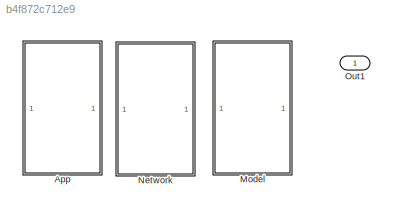
MODEL slx_b4f872c712e9
KIND model
CONFIG AbsTol = auto
CONFIG EnableMultiTasking = off
CONFIG FixedStep = auto
CONFIG MaxStep = auto
CONFIG MinStep = auto
CONFIG RelTol = 1e-3
CONFIG SampleTimeConstraint = Unconstrained
CONFIG Solver = VariableStepAuto
CONFIG SolverName = VariableStepAuto
CONFIG StartTime = 0.0
CONFIG StopTime = 20
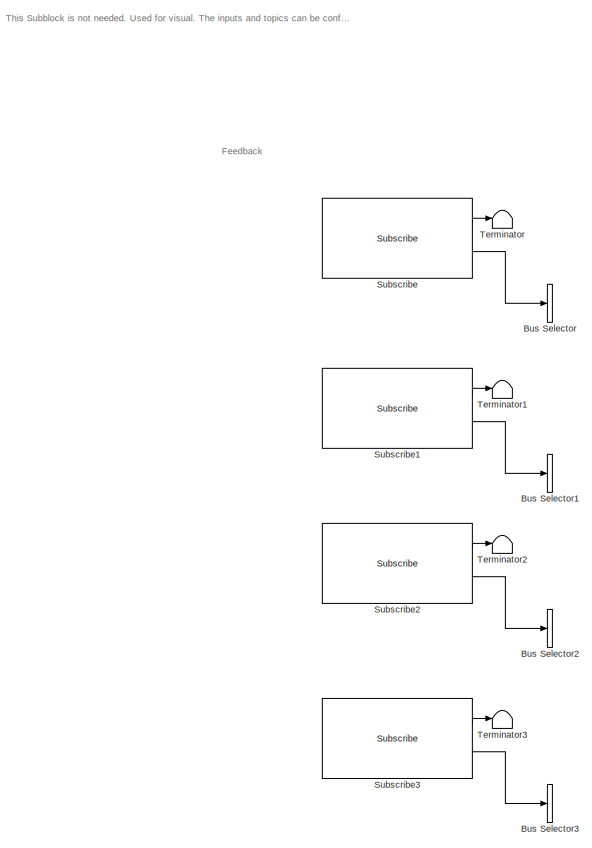
[diagram: App - part 1/2, left side, full height]
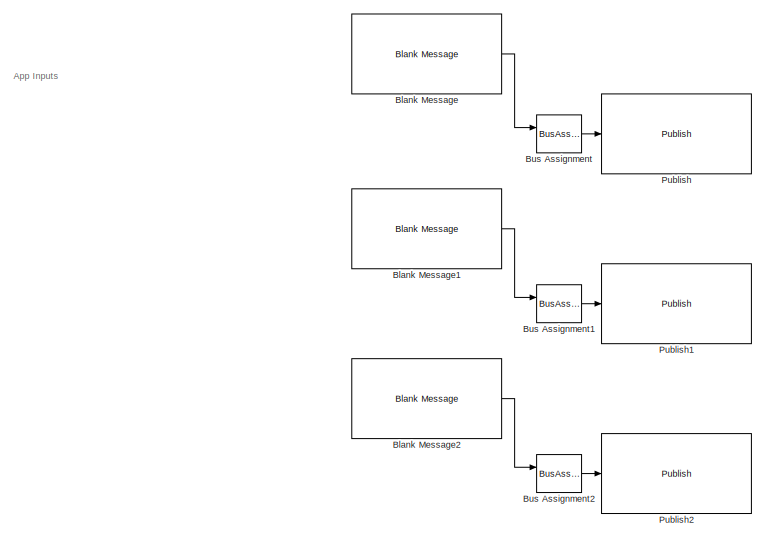
[diagram: App - part 2/2, middle right region]
BLOCK [SubSystem] App
  Commented = on
  Ports = []
  RequestExecContextInheritance = off
BLOCK [Reference] App/Blank Message  REF=robotlib/Blank Message
  Ports = [0, 1]
  SourceBlock = robotlib/Blank Message
  SourceProductBaseCode = RR
  SourceType = ROS Blank Message
BLOCK [Reference] App/Blank Message1  REF=robotlib/Blank Message
  Ports = [0, 1]
  SourceBlock = robotlib/Blank Message
  SourceProductBaseCode = RR
  SourceType = ROS Blank Message
BLOCK [Reference] App/Blank Message2  REF=robotlib/Blank Message
  Ports = [0, 1]
  SourceBlock = robotlib/Blank Message
  SourceProductBaseCode = RR
  SourceType = ROS Blank Message
BLOCK [BusAssignment] App/Bus Assignment
  AssignedSignals = Linear.X
  Ports = [2, 1]
BLOCK [BusAssignment] App/Bus Assignment1
  AssignedSignals = Linear.X
  Ports = [2, 1]
BLOCK [BusAssignment] App/Bus Assignment2
  AssignedSignals = Linear.X
  Ports = [2, 1]
BLOCK [BusSelector] App/Bus Selector
  Commented = on
  OutputSignals = Linear.X
  Ports = [1, 1]
BLOCK [BusSelector] App/Bus Selector1
  Commented = on
  OutputSignals = Linear.X
  Ports = [1, 1]
BLOCK [BusSelector] App/Bus Selector2
  Commented = on
  OutputSignals = Linear.X
  Ports = [1, 1]
BLOCK [BusSelector] App/Bus Selector3
  Commented = on
  OutputSignals = Linear.X
  Ports = [1, 1]
BLOCK [Reference] App/Publish  REF=robotlib/Publish
  Ports = [1]
  SourceBlock = robotlib/Publish
  SourceProductBaseCode = RR
  SourceType = ROS Publish
BLOCK [Reference] App/Publish1  REF=robotlib/Publish
  Ports = [1]
  SourceBlock = robotlib/Publish
  SourceProductBaseCode = RR
  SourceType = ROS Publish
BLOCK [Reference] App/Publish2  REF=robotlib/Publish
  Ports = [1]
  SourceBlock = robotlib/Publish
  SourceProductBaseCode = RR
  SourceType = ROS Publish
BLOCK [Reference] App/Subscribe  REF=robotlib/Subscribe
  Commented = on
  Ports = [0, 2]
  SourceBlock = robotlib/Subscribe
  SourceProductBaseCode = RR
  SourceType = ROS Subscribe
BLOCK [Reference] App/Subscribe1  REF=robotlib/Subscribe
  Commented = on
  Ports = [0, 2]
  SourceBlock = robotlib/Subscribe
  SourceProductBaseCode = RR
  SourceType = ROS Subscribe
BLOCK [Reference] App/Subscribe2  REF=robotlib/Subscribe
  Commented = on
  Ports = [0, 2]
  SourceBlock = robotlib/Subscribe
  SourceProductBaseCode = RR
  SourceType = ROS Subscribe
BLOCK [Reference] App/Subscribe3  REF=robotlib/Subscribe
  Commented = on
  Ports = [0, 2]
  SourceBlock = robotlib/Subscribe
  SourceProductBaseCode = RR
  SourceType = ROS Subscribe
BLOCK [Terminator] App/Terminator
  Commented = on
BLOCK [Terminator] App/Terminator1
  Commented = on
BLOCK [Terminator] App/Terminator2
  Commented = on
BLOCK [Terminator] App/Terminator3
  Commented = on
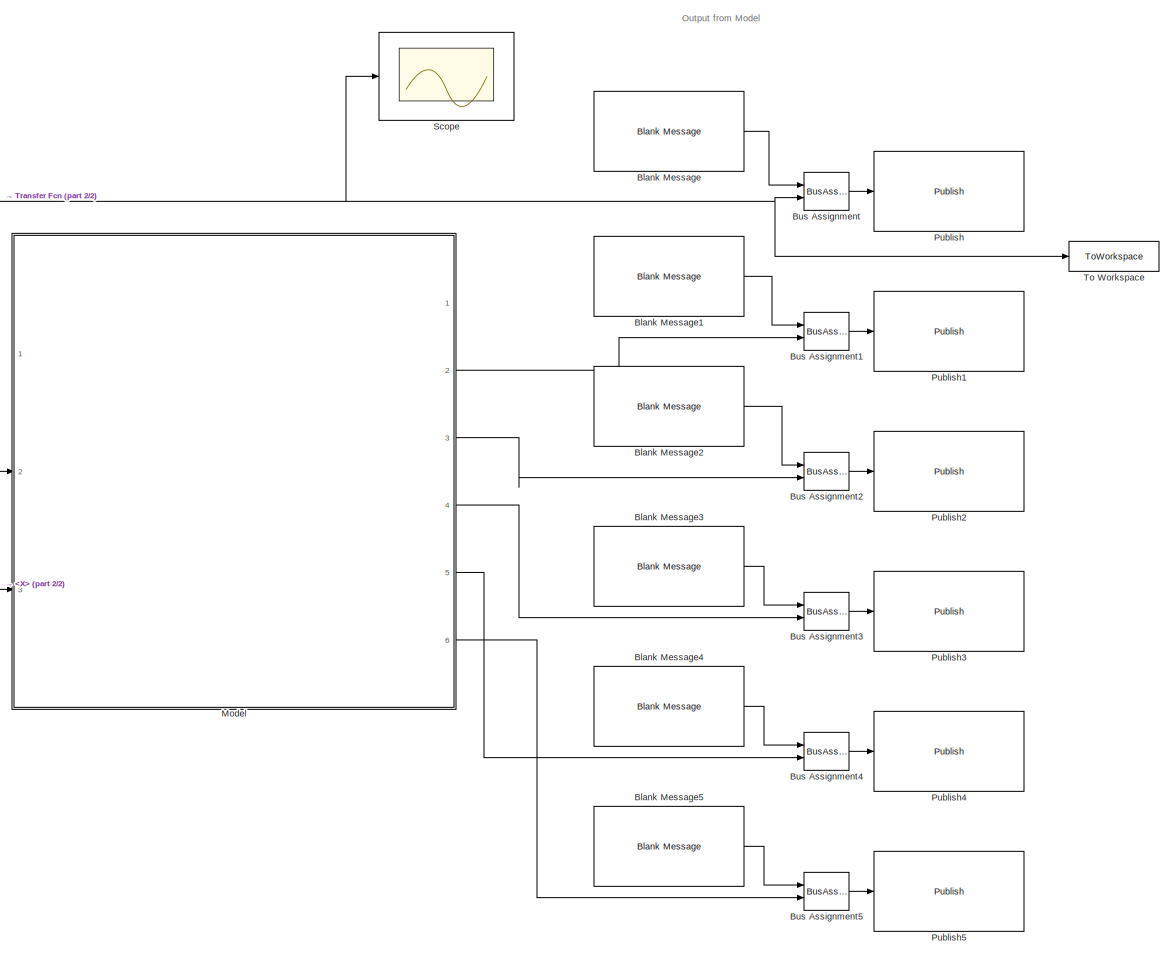
[diagram: Model - part 1/2, right side, full height]
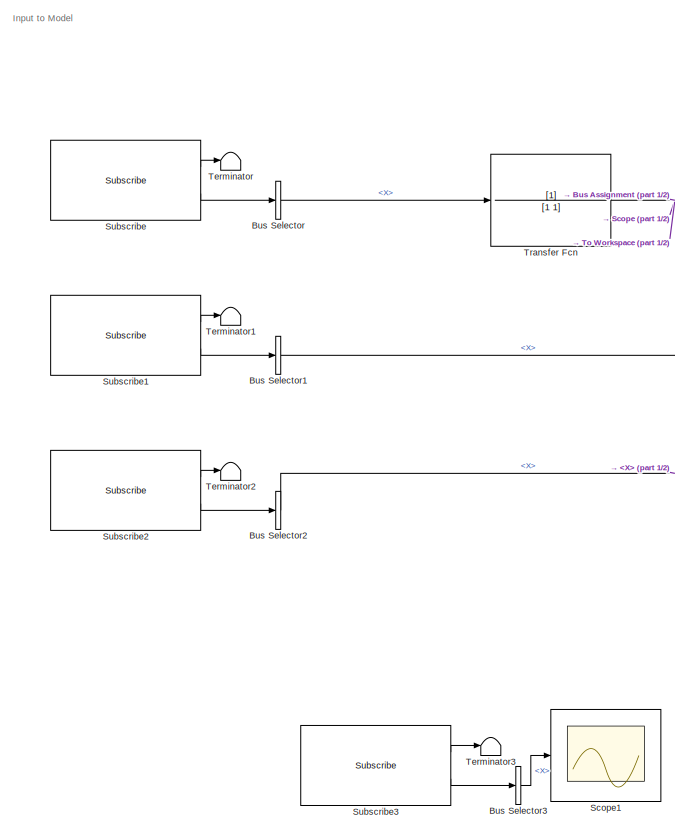
[diagram: Model - part 2/2, left side, full height]
BLOCK [SubSystem] Model
  Ports = []
  RequestExecContextInheritance = off
BLOCK [Reference] Model/Blank Message  REF=robotlib/Blank Message
  Ports = [0, 1]
  SourceBlock = robotlib/Blank Message
  SourceProductBaseCode = RR
  SourceType = ROS Blank Message
BLOCK [Reference] Model/Blank Message1  REF=robotlib/Blank Message
  Commented = on
  Ports = [0, 1]
  SourceBlock = robotlib/Blank Message
  SourceProductBaseCode = RR
  SourceType = ROS Blank Message
BLOCK [Reference] Model/Blank Message2  REF=robotlib/Blank Message
  Commented = on
  Ports = [0, 1]
  SourceBlock = robotlib/Blank Message
  SourceProductBaseCode = RR
  SourceType = ROS Blank Message
BLOCK [Reference] Model/Blank Message3  REF=robotlib/Blank Message
  Commented = on
  Ports = [0, 1]
  SourceBlock = robotlib/Blank Message
  SourceProductBaseCode = RR
  SourceType = ROS Blank Message
BLOCK [Reference] Model/Blank Message4  REF=robotlib/Blank Message
  Commented = on
  Ports = [0, 1]
  SourceBlock = robotlib/Blank Message
  SourceProductBaseCode = RR
  SourceType = ROS Blank Message
BLOCK [Reference] Model/Blank Message5  REF=robotlib/Blank Message
  Commented = on
  Ports = [0, 1]
  SourceBlock = robotlib/Blank Message
  SourceProductBaseCode = RR
  SourceType = ROS Blank Message
BLOCK [BusAssignment] Model/Bus Assignment
  AssignedSignals = Linear.X
  Ports = [2, 1]
BLOCK [BusAssignment] Model/Bus Assignment1
  AssignedSignals = Linear.X
  Commented = on
  Ports = [2, 1]
BLOCK [BusAssignment] Model/Bus Assignment2
  AssignedSignals = Linear.X
  Commented = on
  Ports = [2, 1]
BLOCK [BusAssignment] Model/Bus Assignment3
  AssignedSignals = Linear.X
  Commented = on
  Ports = [2, 1]
BLOCK [BusAssignment] Model/Bus Assignment4
  AssignedSignals = Linear.X
  Commented = on
  Ports = [2, 1]
BLOCK [BusAssignment] Model/Bus Assignment5
  AssignedSignals = Linear.X
  Commented = on
  Ports = [2, 1]
BLOCK [BusSelector] Model/Bus Selector
  OutputSignals = Linear.X
  Ports = [1, 1]
BLOCK [BusSelector] Model/Bus Selector1
  OutputSignals = Linear.X
  Ports = [1, 1]
BLOCK [BusSelector] Model/Bus Selector2
  OutputSignals = Linear.X
  Ports = [1, 1]
BLOCK [BusSelector] Model/Bus Selector3
  Commented = on
  OutputSignals = Linear.X
  Ports = [1, 1]
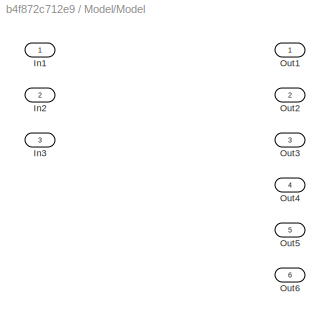
BLOCK [SubSystem] Model/Model
  Commented = on
  Ports = [3, 6]
  RequestExecContextInheritance = off
BLOCK [Inport] Model/Model/In1
BLOCK [Inport] Model/Model/In2
  Port = 2
BLOCK [Inport] Model/Model/In3
  Port = 3
BLOCK [Outport] Model/Model/Out1
BLOCK [Outport] Model/Model/Out2
  Port = 2
BLOCK [Outport] Model/Model/Out3
  Port = 3
BLOCK [Outport] Model/Model/Out4
  Port = 4
BLOCK [Outport] Model/Model/Out5
  Port = 5
BLOCK [Outport] Model/Model/Out6
  Port = 6
BLOCK [Reference] Model/Publish  REF=robotlib/Publish
  Ports = [1]
  SourceBlock = robotlib/Publish
  SourceProductBaseCode = RR
  SourceType = ROS Publish
BLOCK [Reference] Model/Publish1  REF=robotlib/Publish
  Commented = on
  Ports = [1]
  SourceBlock = robotlib/Publish
  SourceProductBaseCode = RR
  SourceType = ROS Publish
BLOCK [Reference] Model/Publish2  REF=robotlib/Publish
  Commented = on
  Ports = [1]
  SourceBlock = robotlib/Publish
  SourceProductBaseCode = RR
  SourceType = ROS Publish
BLOCK [Reference] Model/Publish3  REF=robotlib/Publish
  Commented = on
  Ports = [1]
  SourceBlock = robotlib/Publish
  SourceProductBaseCode = RR
  SourceType = ROS Publish
BLOCK [Reference] Model/Publish4  REF=robotlib/Publish
  Commented = on
  Ports = [1]
  SourceBlock = robotlib/Publish
  SourceProductBaseCode = RR
  SourceType = ROS Publish
BLOCK [Reference] Model/Publish5  REF=robotlib/Publish
  Commented = on
  Ports = [1]
  SourceBlock = robotlib/Publish
  SourceProductBaseCode = RR
  SourceType = ROS Publish
BLOCK [Scope] Model/Scope
  Floating = off
  NumInputPorts = 1
  Ports = [1]
  ScopeSpecificationString = Simulink.scopes.TimeScopeBlockCfg('CurrentConfiguration', extmgr.ConfigurationSet(extmgr.Configuration('Core','General UI',true),extmgr.Configuration('Core','Source UI',true),extmgr.Configuration('Sources','WiredSimulink',true,'DataLoggingVariableName','ScopeData1'),extmgr.Configuration('Visuals','Time Domain',true,'SerializedDisplays',{struct('MinYLimReal','-1.24938','MaxYLimReal','11.24438','YLa...<+1406ch>
BLOCK [Scope] Model/Scope1
  Commented = on
  Floating = off
  NumInputPorts = 1
  Ports = [1]
  ScopeSpecificationString = Simulink.scopes.TimeScopeBlockCfg('CurrentConfiguration', extmgr.ConfigurationSet(extmgr.Configuration('Core','General UI',true),extmgr.Configuration('Core','Source UI',true),extmgr.Configuration('Sources','WiredSimulink',true,'DataLoggingVariableName','ScopeData1'),extmgr.Configuration('Visuals','Time Domain',true,'SerializedDisplays',{struct('MinYLimReal','-1.4991','MaxYLimReal','13.49192','YLab...<+1395ch>
BLOCK [Reference] Model/Subscribe  REF=robotlib/Subscribe
  Ports = [0, 2]
  SourceBlock = robotlib/Subscribe
  SourceProductBaseCode = RR
  SourceType = ROS Subscribe
BLOCK [Reference] Model/Subscribe1  REF=robotlib/Subscribe
  Ports = [0, 2]
  SourceBlock = robotlib/Subscribe
  SourceProductBaseCode = RR
  SourceType = ROS Subscribe
BLOCK [Reference] Model/Subscribe2  REF=robotlib/Subscribe
  Ports = [0, 2]
  SourceBlock = robotlib/Subscribe
  SourceProductBaseCode = RR
  SourceType = ROS Subscribe
BLOCK [Reference] Model/Subscribe3  REF=robotlib/Subscribe
  Commented = on
  Ports = [0, 2]
  SourceBlock = robotlib/Subscribe
  SourceProductBaseCode = RR
  SourceType = ROS Subscribe
BLOCK [Terminator] Model/Terminator
BLOCK [Terminator] Model/Terminator1
BLOCK [Terminator] Model/Terminator2
BLOCK [Terminator] Model/Terminator3
  Commented = on
BLOCK [ToWorkspace] Model/To Workspace
  FixptAsFi = on
  MaxDataPoints = inf
  Ports = [1]
  SampleTime = -1
  SaveFormat = Timeseries
  VariableName = PedalData
BLOCK [TransferFcn] Model/Transfer Fcn
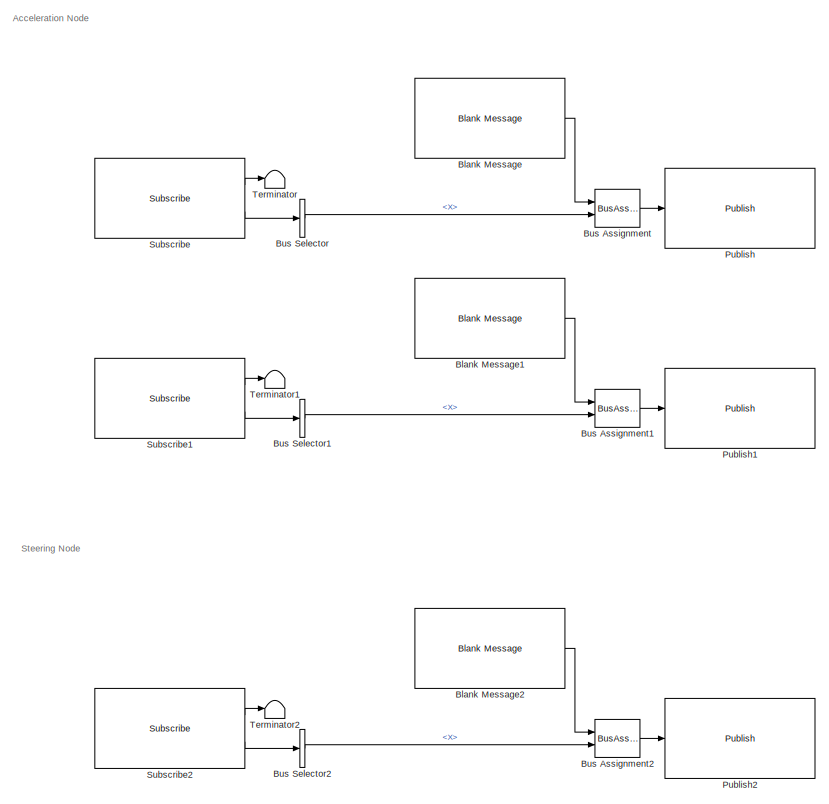
[diagram: Network - part 1/2, full width, top band]
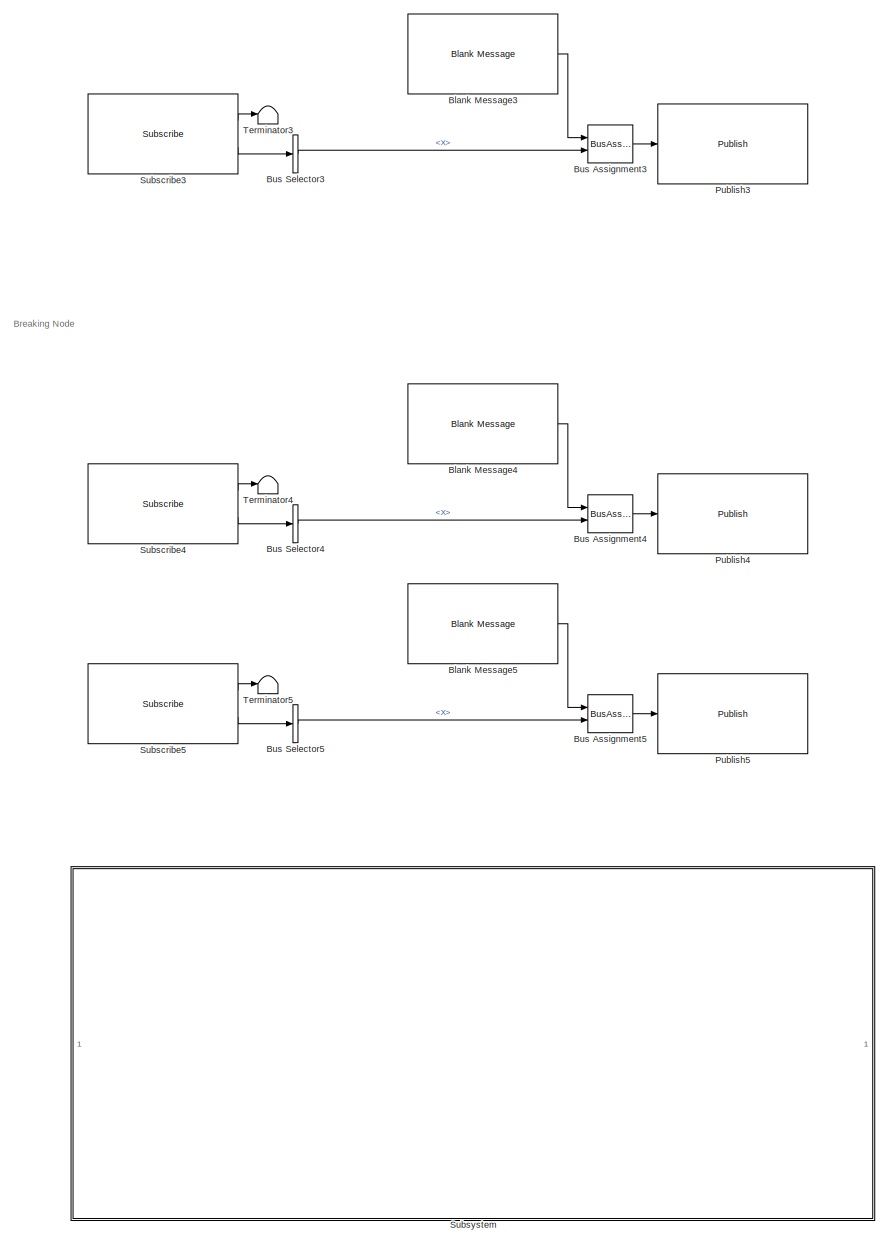
[diagram: Network - part 2/2, full width, bottom band]
BLOCK [SubSystem] Network
  Ports = []
  RequestExecContextInheritance = off
BLOCK [Reference] Network/Blank Message  REF=robotlib/Blank Message
  Ports = [0, 1]
  SourceBlock = robotlib/Blank Message
  SourceProductBaseCode = RR
  SourceType = ROS Blank Message
BLOCK [Reference] Network/Blank Message1  REF=robotlib/Blank Message
  Ports = [0, 1]
  SourceBlock = robotlib/Blank Message
  SourceProductBaseCode = RR
  SourceType = ROS Blank Message
BLOCK [Reference] Network/Blank Message2  REF=robotlib/Blank Message
  Ports = [0, 1]
  SourceBlock = robotlib/Blank Message
  SourceProductBaseCode = RR
  SourceType = ROS Blank Message
BLOCK [Reference] Network/Blank Message3  REF=robotlib/Blank Message
  Ports = [0, 1]
  SourceBlock = robotlib/Blank Message
  SourceProductBaseCode = RR
  SourceType = ROS Blank Message
BLOCK [Reference] Network/Blank Message4  REF=robotlib/Blank Message
  Ports = [0, 1]
  SourceBlock = robotlib/Blank Message
  SourceProductBaseCode = RR
  SourceType = ROS Blank Message
BLOCK [Reference] Network/Blank Message5  REF=robotlib/Blank Message
  Ports = [0, 1]
  SourceBlock = robotlib/Blank Message
  SourceProductBaseCode = RR
  SourceType = ROS Blank Message
BLOCK [BusAssignment] Network/Bus Assignment
  AssignedSignals = Linear.X
  Ports = [2, 1]
BLOCK [BusAssignment] Network/Bus Assignment1
  AssignedSignals = Linear.X
  Ports = [2, 1]
BLOCK [BusAssignment] Network/Bus Assignment2
  AssignedSignals = Linear.X
  Ports = [2, 1]
BLOCK [BusAssignment] Network/Bus Assignment3
  AssignedSignals = Linear.X
  Ports = [2, 1]
BLOCK [BusAssignment] Network/Bus Assignment4
  AssignedSignals = Linear.X
  Ports = [2, 1]
BLOCK [BusAssignment] Network/Bus Assignment5
  AssignedSignals = Linear.X
  Ports = [2, 1]
BLOCK [BusSelector] Network/Bus Selector
  OutputSignals = Linear.X
  Ports = [1, 1]
BLOCK [BusSelector] Network/Bus Selector1
  OutputSignals = Linear.X
  Ports = [1, 1]
BLOCK [BusSelector] Network/Bus Selector2
  OutputSignals = Linear.X
  Ports = [1, 1]
BLOCK [BusSelector] Network/Bus Selector3
  OutputSignals = Linear.X
  Ports = [1, 1]
BLOCK [BusSelector] Network/Bus Selector4
  OutputSignals = Linear.X
  Ports = [1, 1]
BLOCK [BusSelector] Network/Bus Selector5
  OutputSignals = Linear.X
  Ports = [1, 1]
BLOCK [Reference] Network/Publish  REF=robotlib/Publish
  Ports = [1]
  SourceBlock = robotlib/Publish
  SourceProductBaseCode = RR
  SourceType = ROS Publish
BLOCK [Reference] Network/Publish1  REF=robotlib/Publish
  Ports = [1]
  SourceBlock = robotlib/Publish
  SourceProductBaseCode = RR
  SourceType = ROS Publish
BLOCK [Reference] Network/Publish2  REF=robotlib/Publish
  Ports = [1]
  SourceBlock = robotlib/Publish
  SourceProductBaseCode = RR
  SourceType = ROS Publish
BLOCK [Reference] Network/Publish3  REF=robotlib/Publish
  Ports = [1]
  SourceBlock = robotlib/Publish
  SourceProductBaseCode = RR
  SourceType = ROS Publish
BLOCK [Reference] Network/Publish4  REF=robotlib/Publish
  Ports = [1]
  SourceBlock = robotlib/Publish
  SourceProductBaseCode = RR
  SourceType = ROS Publish
BLOCK [Reference] Network/Publish5  REF=robotlib/Publish
  Ports = [1]
  SourceBlock = robotlib/Publish
  SourceProductBaseCode = RR
  SourceType = ROS Publish
BLOCK [Reference] Network/Subscribe  REF=robotlib/Subscribe
  Ports = [0, 2]
  SourceBlock = robotlib/Subscribe
  SourceProductBaseCode = RR
  SourceType = ROS Subscribe
BLOCK [Reference] Network/Subscribe1  REF=robotlib/Subscribe
  Ports = [0, 2]
  SourceBlock = robotlib/Subscribe
  SourceProductBaseCode = RR
  SourceType = ROS Subscribe
BLOCK [Reference] Network/Subscribe2  REF=robotlib/Subscribe
  Ports = [0, 2]
  SourceBlock = robotlib/Subscribe
  SourceProductBaseCode = RR
  SourceType = ROS Subscribe
BLOCK [Reference] Network/Subscribe3  REF=robotlib/Subscribe
  Ports = [0, 2]
  SourceBlock = robotlib/Subscribe
  SourceProductBaseCode = RR
  SourceType = ROS Subscribe
BLOCK [Reference] Network/Subscribe4  REF=robotlib/Subscribe
  Ports = [0, 2]
  SourceBlock = robotlib/Subscribe
  SourceProductBaseCode = RR
  SourceType = ROS Subscribe
BLOCK [Reference] Network/Subscribe5  REF=robotlib/Subscribe
  Ports = [0, 2]
  SourceBlock = robotlib/Subscribe
  SourceProductBaseCode = RR
  SourceType = ROS Subscribe
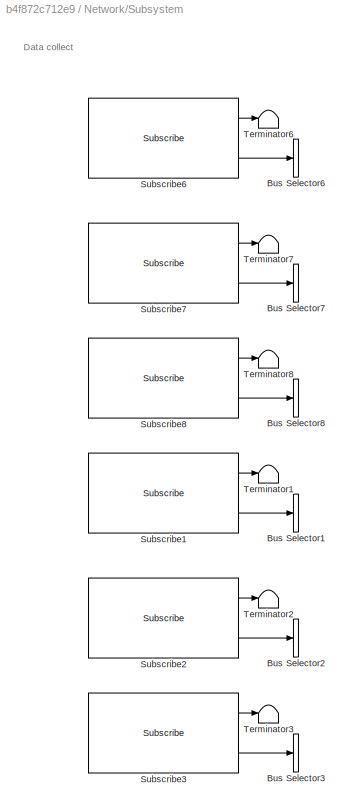
BLOCK [SubSystem] Network/Subsystem
  Commented = on
  Ports = []
  RequestExecContextInheritance = off
BLOCK [BusSelector] Network/Subsystem/Bus Selector1
  OutputSignals = Linear.X
  Ports = [1, 1]
BLOCK [BusSelector] Network/Subsystem/Bus Selector2
  OutputSignals = Linear.X
  Ports = [1, 1]
BLOCK [BusSelector] Network/Subsystem/Bus Selector3
  OutputSignals = Linear.X
  Ports = [1, 1]
BLOCK [BusSelector] Network/Subsystem/Bus Selector6
  OutputSignals = Linear.X
  Ports = [1, 1]
BLOCK [BusSelector] Network/Subsystem/Bus Selector7
  OutputSignals = Linear.X
  Ports = [1, 1]
BLOCK [BusSelector] Network/Subsystem/Bus Selector8
  OutputSignals = Linear.X
  Ports = [1, 1]
BLOCK [Reference] Network/Subsystem/Subscribe1  REF=robotlib/Subscribe
  Ports = [0, 2]
  SourceBlock = robotlib/Subscribe
  SourceProductBaseCode = RR
  SourceType = ROS Subscribe
BLOCK [Reference] Network/Subsystem/Subscribe2  REF=robotlib/Subscribe
  Ports = [0, 2]
  SourceBlock = robotlib/Subscribe
  SourceProductBaseCode = RR
  SourceType = ROS Subscribe
BLOCK [Reference] Network/Subsystem/Subscribe3  REF=robotlib/Subscribe
  Ports = [0, 2]
  SourceBlock = robotlib/Subscribe
  SourceProductBaseCode = RR
  SourceType = ROS Subscribe
BLOCK [Reference] Network/Subsystem/Subscribe6  REF=robotlib/Subscribe
  Ports = [0, 2]
  SourceBlock = robotlib/Subscribe
  SourceProductBaseCode = RR
  SourceType = ROS Subscribe
BLOCK [Reference] Network/Subsystem/Subscribe7  REF=robotlib/Subscribe
  Ports = [0, 2]
  SourceBlock = robotlib/Subscribe
  SourceProductBaseCode = RR
  SourceType = ROS Subscribe
BLOCK [Reference] Network/Subsystem/Subscribe8  REF=robotlib/Subscribe
  Ports = [0, 2]
  SourceBlock = robotlib/Subscribe
  SourceProductBaseCode = RR
  SourceType = ROS Subscribe
BLOCK [Terminator] Network/Subsystem/Terminator1
BLOCK [Terminator] Network/Subsystem/Terminator2
BLOCK [Terminator] Network/Subsystem/Terminator3
BLOCK [Terminator] Network/Subsystem/Terminator6
BLOCK [Terminator] Network/Subsystem/Terminator7
BLOCK [Terminator] Network/Subsystem/Terminator8
BLOCK [Terminator] Network/Terminator
BLOCK [Terminator] Network/Terminator1
BLOCK [Terminator] Network/Terminator2
BLOCK [Terminator] Network/Terminator3
BLOCK [Terminator] Network/Terminator4
BLOCK [Terminator] Network/Terminator5
BLOCK [Outport] Out1
ANNOTATION App: This Subblock is not needed. Used for visual. The inputs and topics can be configured within the app
ANNOTATION App: App Inputs
ANNOTATION App: Feedback
ANNOTATION Model: Input to Model
ANNOTATION Model: Output from Model
ANNOTATION Network: Acceleration Node
ANNOTATION Network: Breaking Node
ANNOTATION Network: Steering Node
ANNOTATION Network/Subsystem: Data collect
LINE App/Blank Message1:1 -> App/Bus Assignment1:1
LINE App/Blank Message2:1 -> App/Bus Assignment2:1
LINE App/Blank Message:1 -> App/Bus Assignment:1
LINE App/Bus Assignment1:1 -> App/Publish1:1
LINE App/Bus Assignment2:1 -> App/Publish2:1
LINE App/Bus Assignment:1 -> App/Publish:1
LINE App/Subscribe1:1 -> App/Terminator1:1
LINE App/Subscribe1:2 -> App/Bus Selector1:1
LINE App/Subscribe2:1 -> App/Terminator2:1
LINE App/Subscribe2:2 -> App/Bus Selector2:1
LINE App/Subscribe3:1 -> App/Terminator3:1
LINE App/Subscribe3:2 -> App/Bus Selector3:1
LINE App/Subscribe:1 -> App/Terminator:1
LINE App/Subscribe:2 -> App/Bus Selector:1
LINE Model/Blank Message1:1 -> Model/Bus Assignment1:1
LINE Model/Blank Message2:1 -> Model/Bus Assignment2:1
LINE Model/Blank Message3:1 -> Model/Bus Assignment3:1
LINE Model/Blank Message4:1 -> Model/Bus Assignment4:1
LINE Model/Blank Message5:1 -> Model/Bus Assignment5:1
LINE Model/Blank Message:1 -> Model/Bus Assignment:1
LINE Model/Bus Assignment1:1 -> Model/Publish1:1
LINE Model/Bus Assignment2:1 -> Model/Publish2:1
LINE Model/Bus Assignment3:1 -> Model/Publish3:1
LINE Model/Bus Assignment4:1 -> Model/Publish4:1
LINE Model/Bus Assignment5:1 -> Model/Publish5:1
LINE Model/Bus Assignment:1 -> Model/Publish:1
LINE Model/Bus Selector1:1 -> Model/Model:2
LINE Model/Bus Selector2:1 -> Model/Model:3
LINE Model/Bus Selector3:1 -> Model/Scope1:1
LINE Model/Bus Selector:1 -> Model/Transfer Fcn:1
LINE Model/Model:2 -> Model/Bus Assignment1:2
LINE Model/Model:3 -> Model/Bus Assignment2:2
LINE Model/Model:4 -> Model/Bus Assignment3:2
LINE Model/Model:5 -> Model/Bus Assignment4:2
LINE Model/Model:6 -> Model/Bus Assignment5:2
LINE Model/Subscribe1:1 -> Model/Terminator1:1
LINE Model/Subscribe1:2 -> Model/Bus Selector1:1
LINE Model/Subscribe2:1 -> Model/Terminator2:1
LINE Model/Subscribe2:2 -> Model/Bus Selector2:1
LINE Model/Subscribe3:1 -> Model/Terminator3:1
LINE Model/Subscribe3:2 -> Model/Bus Selector3:1
LINE Model/Subscribe:1 -> Model/Terminator:1
LINE Model/Subscribe:2 -> Model/Bus Selector:1
NET Model/Transfer Fcn:1 -> Model/Bus Assignment:2, Model/Scope:1, Model/To Workspace:1
LINE Network/Blank Message1:1 -> Network/Bus Assignment1:1
LINE Network/Blank Message2:1 -> Network/Bus Assignment2:1
LINE Network/Blank Message3:1 -> Network/Bus Assignment3:1
LINE Network/Blank Message4:1 -> Network/Bus Assignment4:1
LINE Network/Blank Message5:1 -> Network/Bus Assignment5:1
LINE Network/Blank Message:1 -> Network/Bus Assignment:1
LINE Network/Bus Assignment1:1 -> Network/Publish1:1
LINE Network/Bus Assignment2:1 -> Network/Publish2:1
LINE Network/Bus Assignment3:1 -> Network/Publish3:1
LINE Network/Bus Assignment4:1 -> Network/Publish4:1
LINE Network/Bus Assignment5:1 -> Network/Publish5:1
LINE Network/Bus Assignment:1 -> Network/Publish:1
LINE Network/Bus Selector1:1 -> Network/Bus Assignment1:2
LINE Network/Bus Selector2:1 -> Network/Bus Assignment2:2
LINE Network/Bus Selector3:1 -> Network/Bus Assignment3:2
LINE Network/Bus Selector4:1 -> Network/Bus Assignment4:2
LINE Network/Bus Selector5:1 -> Network/Bus Assignment5:2
LINE Network/Bus Selector:1 -> Network/Bus Assignment:2
LINE Network/Subscribe1:1 -> Network/Terminator1:1
LINE Network/Subscribe1:2 -> Network/Bus Selector1:1
LINE Network/Subscribe2:1 -> Network/Terminator2:1
LINE Network/Subscribe2:2 -> Network/Bus Selector2:1
LINE Network/Subscribe3:1 -> Network/Terminator3:1
LINE Network/Subscribe3:2 -> Network/Bus Selector3:1
LINE Network/Subscribe4:1 -> Network/Terminator4:1
LINE Network/Subscribe4:2 -> Network/Bus Selector4:1
LINE Network/Subscribe5:1 -> Network/Terminator5:1
LINE Network/Subscribe5:2 -> Network/Bus Selector5:1
LINE Network/Subscribe:1 -> Network/Terminator:1
LINE Network/Subscribe:2 -> Network/Bus Selector:1
LINE Network/Subsystem/Subscribe1:1 -> Network/Subsystem/Terminator1:1
LINE Network/Subsystem/Subscribe1:2 -> Network/Subsystem/Bus Selector1:1
LINE Network/Subsystem/Subscribe2:1 -> Network/Subsystem/Terminator2:1
LINE Network/Subsystem/Subscribe2:2 -> Network/Subsystem/Bus Selector2:1
LINE Network/Subsystem/Subscribe3:1 -> Network/Subsystem/Terminator3:1
LINE Network/Subsystem/Subscribe3:2 -> Network/Subsystem/Bus Selector3:1
LINE Network/Subsystem/Subscribe6:1 -> Network/Subsystem/Terminator6:1
LINE Network/Subsystem/Subscribe6:2 -> Network/Subsystem/Bus Selector6:1
LINE Network/Subsystem/Subscribe7:1 -> Network/Subsystem/Terminator7:1
LINE Network/Subsystem/Subscribe7:2 -> Network/Subsystem/Bus Selector7:1
LINE Network/Subsystem/Subscribe8:1 -> Network/Subsystem/Terminator8:1
LINE Network/Subsystem/Subscribe8:2 -> Network/Subsystem/Bus Selector8:1
note: NET lines group one-source signal fan-out (src -> all destinations, sorted); 1:1 wires keep LINE
